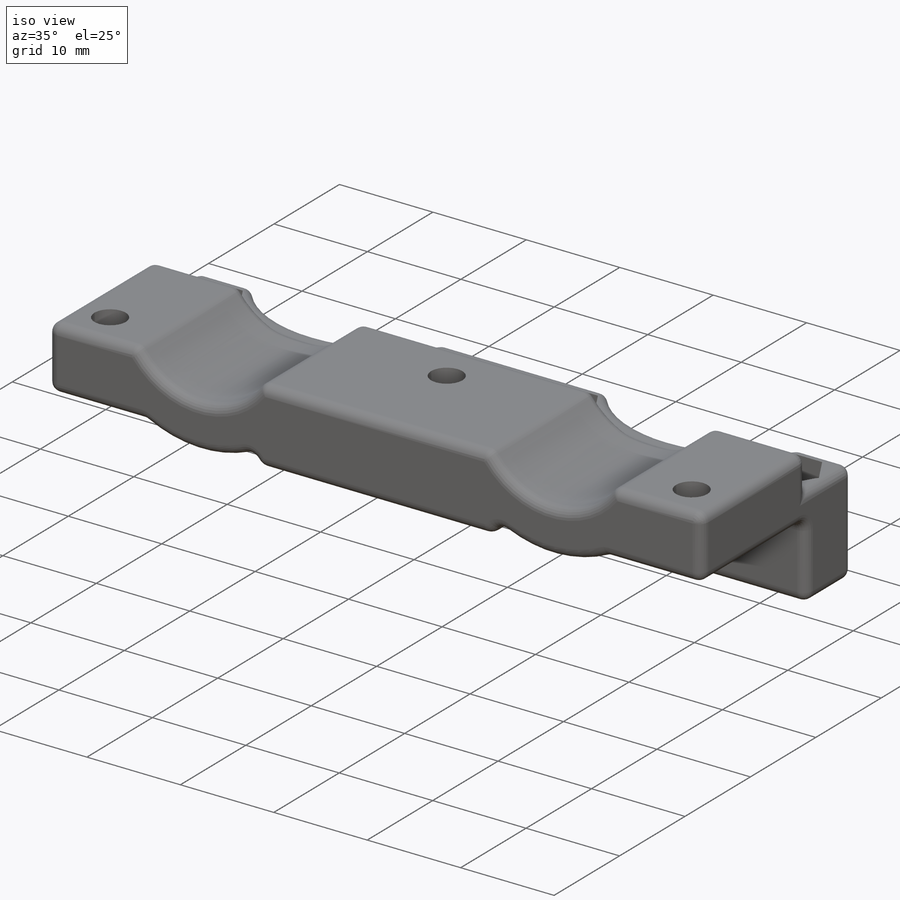
[diagram: iso view]
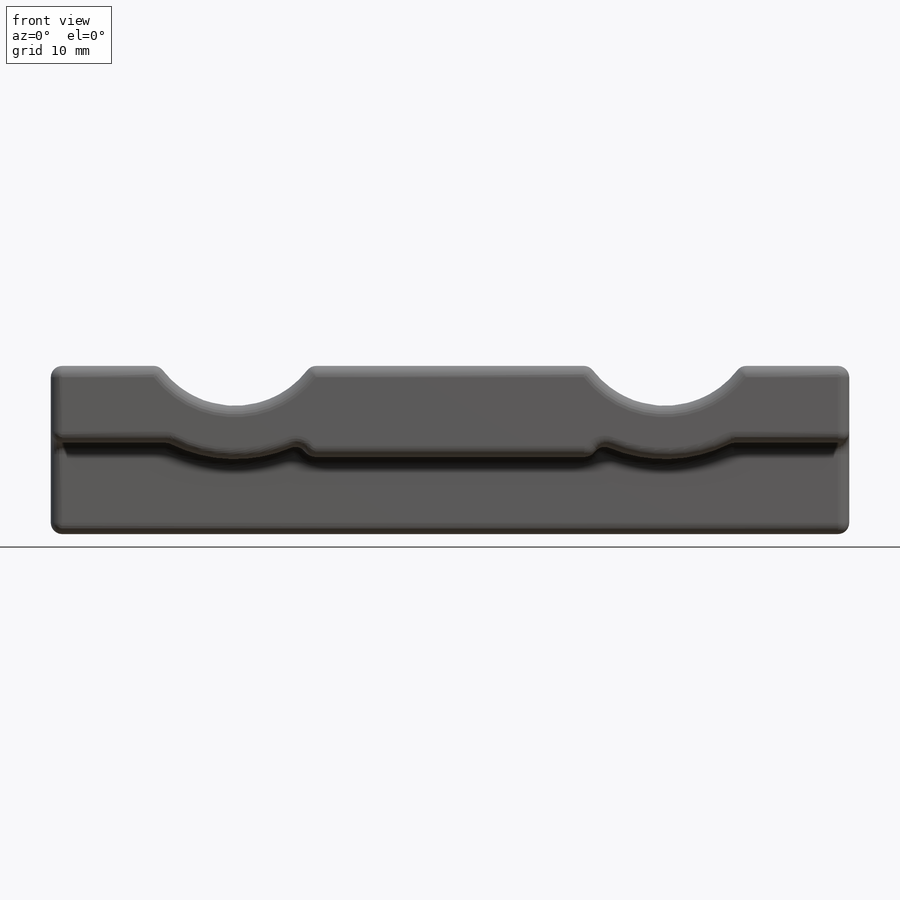
[diagram: front view]
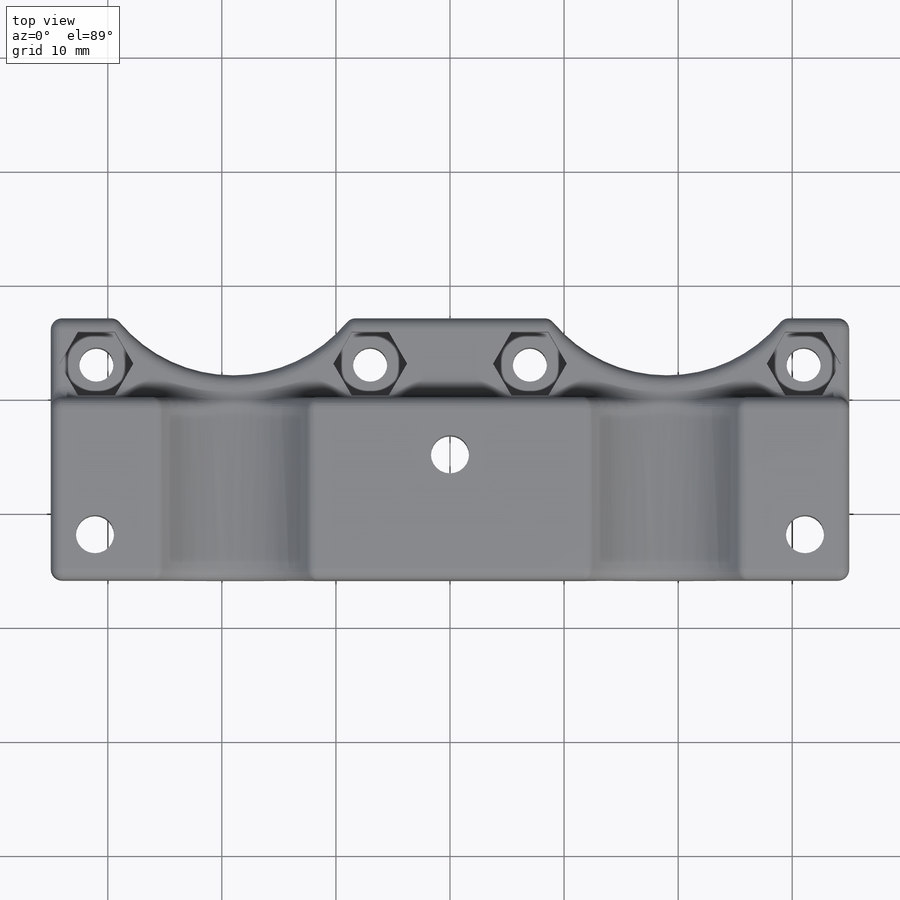
[diagram: top view]
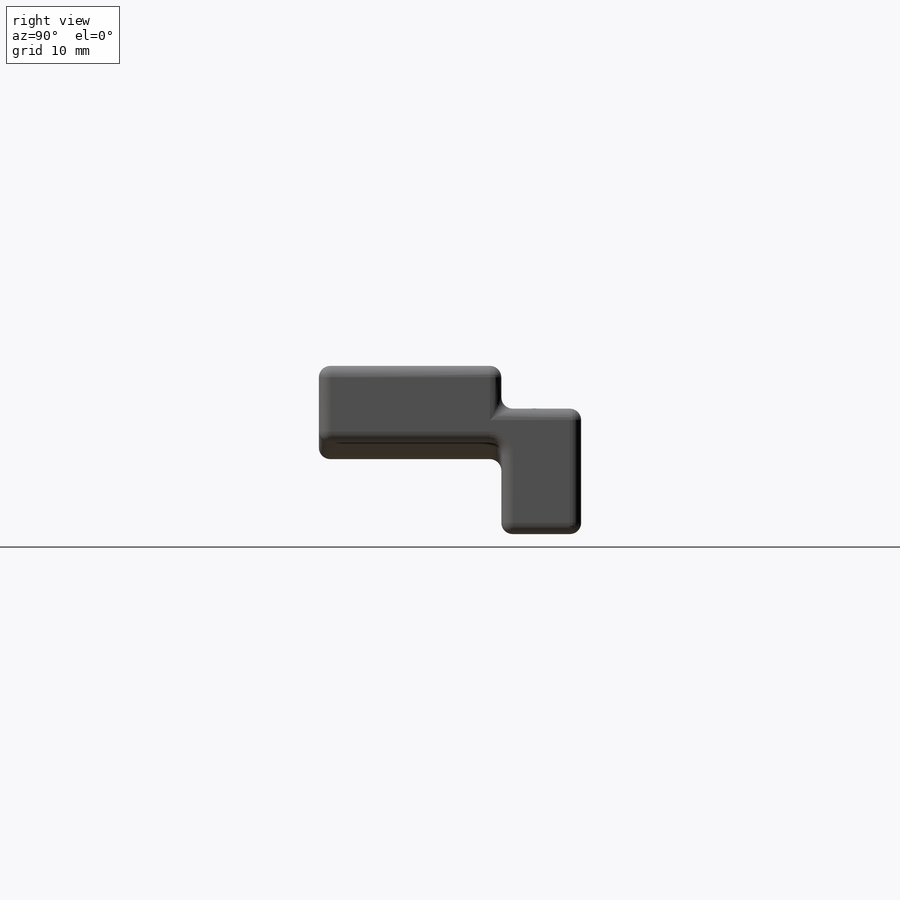
[diagram: right view]
SOLIDWORKS PART (.sldprt)
format: sldprt  version: not decoded by parser v0  size: 1,693,696 bytes
history: native  units: mm
features: sketch x5, plane x3, cut_extrude x3, fillet x3, extrude x2, material x1 (+13 scaffold rows collapsed)
feature tree (30):
  scaffold x13  (default folders/planes/origin — collapsed)
  material  "ABS"
  sketch  "Sketch2"
  sketch  "Sketch3"  dims[D1=8.0mm D2=80.0mm D3=40.0mm]
  plane  "Plane1"
  plane  "Plane2"  Offset=1mm
  extrude  "Boss-Extrude1"  Depth=10mm
  cut_extrude  "Cut-Extrude1"  [1 undecoded]
  sketch  "Sketch4"  dims[D2=5.6mm D3=26.0mm D1=7.0mm]
  plane  "Plane3"  Offset=5mm
  extrude  "Boss-Extrude2"  Depth=8mm
  cut_extrude  "Cut-Extrude2"  [1 undecoded]
  sketch  "Sketch4<3>"  dims[D2=1.0mm]
  fillet  "Fillet3"  Radius=1mm
  fillet  "Fillet4"  Radius=1mm
  fillet  "Fillet5"  Radius=1mm
  sketch  "Sketch5"  dims[D1=6.3mm]
  cut_extrude  "Cut-Extrude3"  Depth=1mm
decode coverage: 10 of 13 modeling features carry decoded parameters
note: 2 parameter values undecoded
note: suppression state not decoded; provenance and decode notes live in map.json
